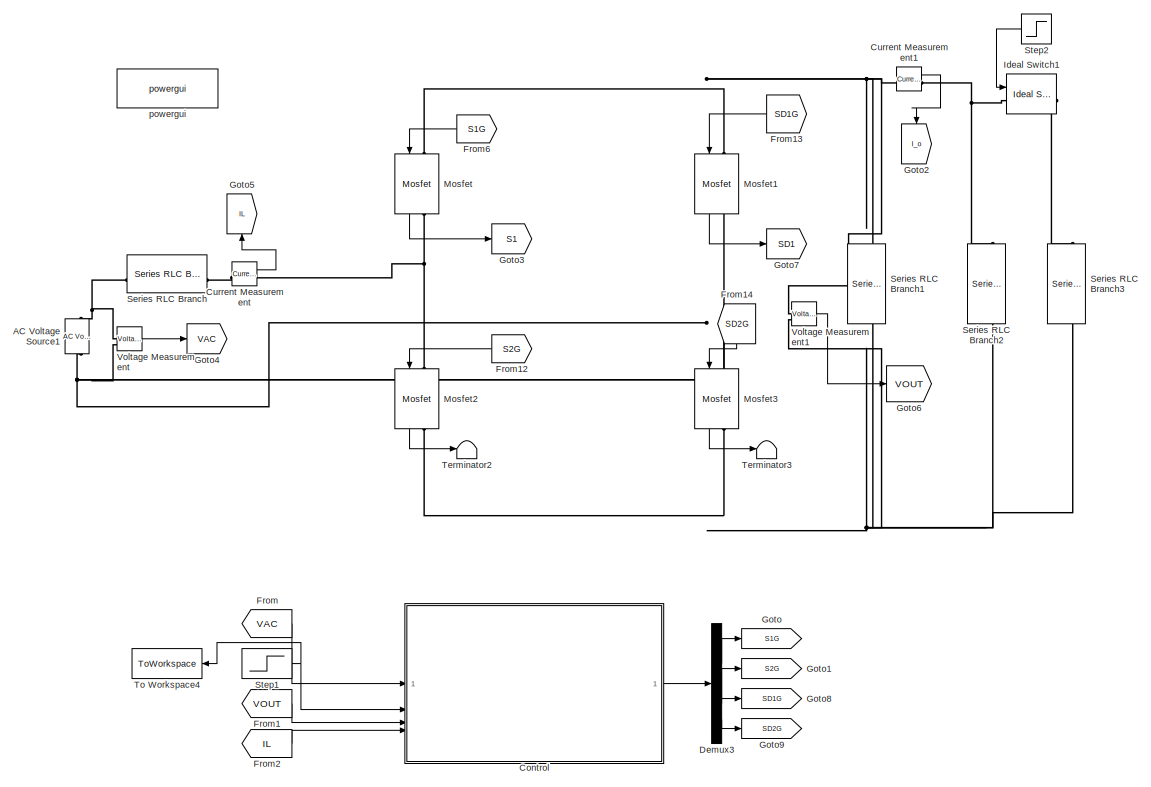
[diagram: root canvas - part 1/2, center side, full height]
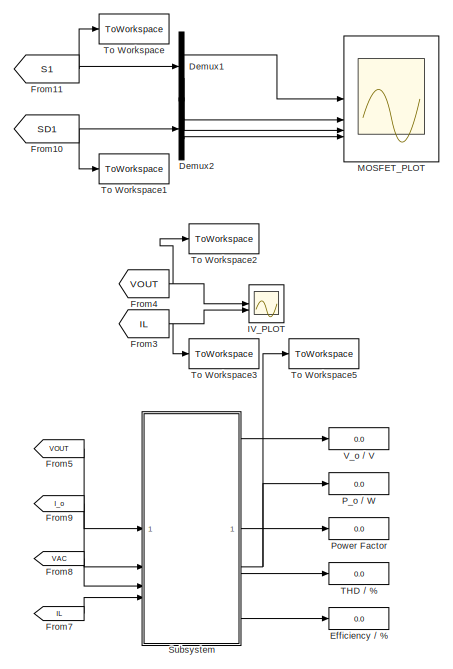
[diagram: root canvas - part 2/2, right side, full height]
MODEL slx_56755ae4c4dd
KIND model
CONFIG AbsTol = 1e-3
CONFIG EnableMultiTasking = on
CONFIG FixedStep = Ts_Power
CONFIG MaxStep = auto
CONFIG MinStep = auto
CONFIG RelTol = 1e-3
CONFIG SampleTimeConstraint = Unconstrained
CONFIG SolverName = FixedStepDiscrete
CONFIG StartTime = 0.0
CONFIG StopTime = 0.6
BLOCK [Reference] AC Voltage Source1  REF=spsACVoltageSourceLib/AC Voltage Source
  LibrarySourceBlock = sps_lib/Sources/AC Voltage Source
  SourceBlock = spsACVoltageSourceLib/AC Voltage Source
  SourceType = AC Voltage Source
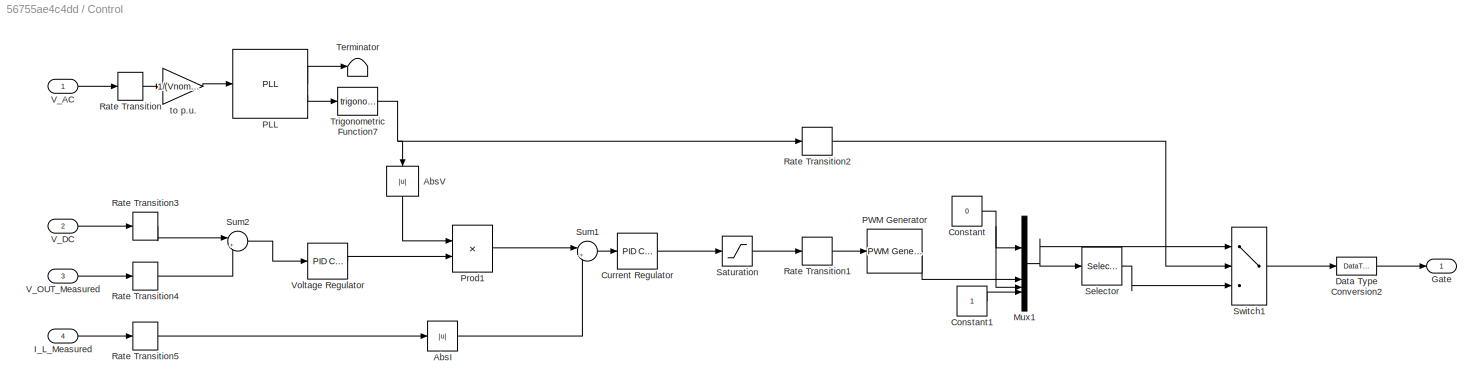
BLOCK [SubSystem] Control
BLOCK [Abs] Control/AbsI
  SaturateOnIntegerOverflow = off
BLOCK [Abs] Control/AbsV
  NameLocation = right
  SaturateOnIntegerOverflow = off
BLOCK [Constant] Control/Constant
  Value = 0
BLOCK [Constant] Control/Constant1
BLOCK [Reference] Control/Current Regulator  REF=slpidlib/PID Controller
  LibrarySourceBlock = simulink/Continuous/PID Controller
  SourceBlock = slpidlib/PID Controller
  SourceType = PID 1dof
BLOCK [DataTypeConversion] Control/Data Type Conversion2
  OutDataTypeStr = double
  RndMeth = Floor
  SaturateOnIntegerOverflow = off
BLOCK [Outport] Control/Gate
BLOCK [Inport] Control/I_L_Measured
  Port = 4
BLOCK [Mux] Control/Mux1
  DisplayOption = bar
BLOCK [Reference] Control/PLL  REF=spsPLLLib/PLL
  SourceBlock = spsPLLLib/PLL
  SourceType = PLL
BLOCK [Reference] Control/PWM Generator  REF=spsPWMGeneratorDCDCLib/PWM Generator
(DC-DC)
  SourceBlock = spsPWMGeneratorDCDCLib/PWM Generator\n(DC-DC)
  SourceType = PWM Generator (DC-DC)
BLOCK [Product] Control/Prod1
BLOCK [RateTransition] Control/Rate Transition
  OutPortSampleTime = Ts_Control
BLOCK [RateTransition] Control/Rate Transition1
  OutPortSampleTime = Ts_Power
BLOCK [RateTransition] Control/Rate Transition2
  OutPortSampleTime = Ts_Power
BLOCK [RateTransition] Control/Rate Transition3
  OutPortSampleTime = Ts_Control
BLOCK [RateTransition] Control/Rate Transition4
  OutPortSampleTime = Ts_Control
BLOCK [RateTransition] Control/Rate Transition5
  OutPortSampleTime = Ts_Control
BLOCK [Saturate] Control/Saturation
  LowerLimit = 0
  UpperLimit = 1
BLOCK [Selector] Control/Selector
  IndexOptions = Index vector (dialog)
  Indices = [2 1 4 3]
  InputPortWidth = 4
  OutputSizes = 1
BLOCK [Sum] Control/Sum1
  Inputs = |+-
BLOCK [Sum] Control/Sum2
  Inputs = |+-
BLOCK [Switch] Control/Switch1
  InputSameDT = off
  SaturateOnIntegerOverflow = off
BLOCK [Terminator] Control/Terminator
BLOCK [Trigonometry] Control/Trigonometric Function7
  NameLocation = top
BLOCK [Inport] Control/V_AC
BLOCK [Inport] Control/V_DC
  Port = 2
BLOCK [Inport] Control/V_OUT_Measured
  Port = 3
BLOCK [Reference] Control/Voltage Regulator  REF=slpidlib/PID Controller
  LibrarySourceBlock = simulink/Continuous/PID Controller
  SourceBlock = slpidlib/PID Controller
  SourceType = PID 1dof
BLOCK [Gain] Control/to p.u.
  Gain = 1/(Vnom_ac*sqrt(2))
BLOCK [Reference] Current Measurement  REF=spsCurrentMeasurementLib/Current Measurement
  LibrarySourceBlock = sps_lib/Sensors and Measurements/Current Measurement
  SourceBlock = spsCurrentMeasurementLib/Current Measurement
  SourceType = Current Measurement
  UserDataPersistent = on
BLOCK [Reference] Current Measurement1  REF=spsCurrentMeasurementLib/Current Measurement
  LibrarySourceBlock = sps_lib/Sensors and Measurements/Current Measurement
  SourceBlock = spsCurrentMeasurementLib/Current Measurement
  SourceType = Current Measurement
  UserDataPersistent = on
BLOCK [Demux] Demux1
  Outputs = 2
BLOCK [Demux] Demux2
  Outputs = 2
BLOCK [Demux] Demux3
BLOCK [Display] Efficiency // %
  Decimation = 100
BLOCK [From] From
  GotoTag = VAC
BLOCK [From] From1
  GotoTag = VOUT
BLOCK [From] From10
  GotoTag = SD1
BLOCK [From] From11
  GotoTag = S1
BLOCK [From] From12
  GotoTag = S2G
  NameLocation = top
BLOCK [From] From13
  GotoTag = SD1G
  NameLocation = top
BLOCK [From] From14
  GotoTag = SD2G
  NameLocation = left
BLOCK [From] From2
  GotoTag = IL
BLOCK [From] From3
  GotoTag = IL
BLOCK [From] From4
  GotoTag = VOUT
BLOCK [From] From5
  GotoTag = VOUT
BLOCK [From] From6
  GotoTag = S1G
  NameLocation = top
BLOCK [From] From7
  GotoTag = IL
BLOCK [From] From8
  GotoTag = VAC
BLOCK [From] From9
  GotoTag = I_o
BLOCK [Goto] Goto
  GotoTag = S1G
BLOCK [Goto] Goto1
  GotoTag = S2G
BLOCK [Goto] Goto2
  GotoTag = I_o
  NameLocation = left
BLOCK [Goto] Goto3
  GotoTag = S1
BLOCK [Goto] Goto4
  GotoTag = VAC
BLOCK [Goto] Goto5
  GotoTag = IL
  NameLocation = right
BLOCK [Goto] Goto6
  GotoTag = VOUT
BLOCK [Goto] Goto7
  GotoTag = SD1
BLOCK [Goto] Goto8
  GotoTag = SD1G
BLOCK [Goto] Goto9
  GotoTag = SD2G
BLOCK [Scope] IV_PLOT
  Floating = off
  NumInputPorts = 2
  ScopeSpecificationString = Simulink.scopes.TimeScopeBlockCfg('CurrentConfiguration', extmgr.ConfigurationSet(extmgr.Configuration('Core','General UI',true),extmgr.Configuration('Core','Source UI',true),extmgr.Configuration('Sources','WiredSimulink',true),extmgr.Configuration('Visuals','Time Domain',true,'SerializedDisplays',{struct('MinYLimReal','286.83799','MaxYLimReal','528.90297','YLabelReal','','MinYLimMag','286.83799',...<+2320ch>
BLOCK [Reference] Ideal Switch1  REF=spsIdealSwitchLib/Ideal Switch
  SourceBlock = spsIdealSwitchLib/Ideal Switch
  SourceType = Ideal Switch
BLOCK [Scope] MOSFET_PLOT
  Floating = off
  NumInputPorts = 4
  ScopeSpecificationString = Simulink.scopes.TimeScopeBlockCfg('CurrentConfiguration', extmgr.ConfigurationSet(extmgr.Configuration('Core','General UI',true),extmgr.Configuration('Core','Source UI',true),extmgr.Configuration('Sources','WiredSimulink',true,'DataLoggingVariableName','ScopeData1'),extmgr.Configuration('Visuals','Time Domain',true,'SerializedDisplays',{struct('MinYLimReal','-77.91195','MaxYLimReal','69.47466','YL...<+3833ch>
BLOCK [Reference] Mosfet  REF=spsMosfetLib/Mosfet
  LibrarySourceBlock = sps_lib/Power Electronics/Mosfet
  NameLocation = left
  SourceBlock = spsMosfetLib/Mosfet
  SourceType = Mosfet
BLOCK [Reference] Mosfet1  REF=spsMosfetLib/Mosfet
  LibrarySourceBlock = sps_lib/Power Electronics/Mosfet
  NameLocation = left
  SourceBlock = spsMosfetLib/Mosfet
  SourceType = Mosfet
BLOCK [Reference] Mosfet2  REF=spsMosfetLib/Mosfet
  LibrarySourceBlock = sps_lib/Power Electronics/Mosfet
  NameLocation = left
  SourceBlock = spsMosfetLib/Mosfet
  SourceType = Mosfet
BLOCK [Reference] Mosfet3  REF=spsMosfetLib/Mosfet
  LibrarySourceBlock = sps_lib/Power Electronics/Mosfet
  NameLocation = left
  SourceBlock = spsMosfetLib/Mosfet
  SourceType = Mosfet
BLOCK [Display] P_o // W
  Decimation = 1
BLOCK [Display] Power Factor
  Decimation = 1
BLOCK [Reference] Series RLC Branch  REF=spsSeriesRLCBranchLib/Series RLC Branch
  LibrarySourceBlock = sps_lib/Passives/Series RLC Branch
  SourceBlock = spsSeriesRLCBranchLib/Series RLC Branch
  SourceType = Series RLC Branch
BLOCK [Reference] Series RLC Branch1  REF=spsSeriesRLCBranchLib/Series RLC Branch
  LibrarySourceBlock = sps_lib/Passives/Series RLC Branch
  NameLocation = left
  SourceBlock = spsSeriesRLCBranchLib/Series RLC Branch
  SourceType = Series RLC Branch
BLOCK [Reference] Series RLC Branch2  REF=spsSeriesRLCBranchLib/Series RLC Branch
  LibrarySourceBlock = sps_lib/Passives/Series RLC Branch
  NameLocation = left
  SourceBlock = spsSeriesRLCBranchLib/Series RLC Branch
  SourceType = Series RLC Branch
BLOCK [Reference] Series RLC Branch3  REF=spsSeriesRLCBranchLib/Series RLC Branch
  LibrarySourceBlock = sps_lib/Passives/Series RLC Branch
  NameLocation = left
  SourceBlock = spsSeriesRLCBranchLib/Series RLC Branch
  SourceType = Series RLC Branch
BLOCK [Step] Step1
  After = Vnom_dc
  Before = 350
  NameLocation = top
  SampleTime = Ts_Power
  Time = 0.2
BLOCK [Step] Step2
  SampleTime = Ts_Power
  Time = 0.4
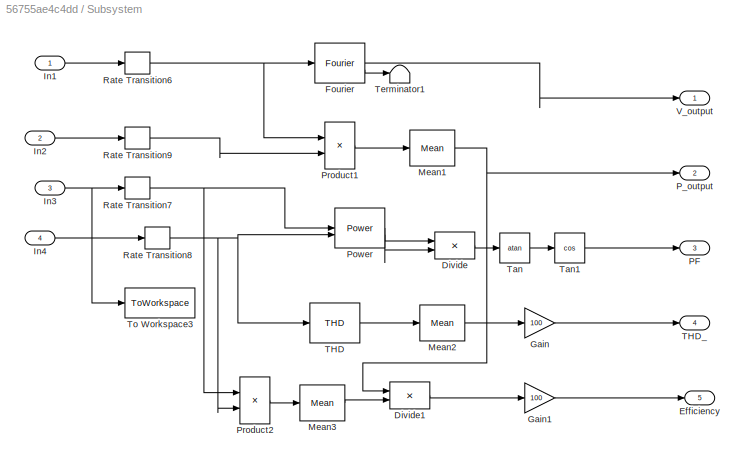
BLOCK [SubSystem] Subsystem
BLOCK [Product] Subsystem/Divide
  Inputs = */
BLOCK [Product] Subsystem/Divide1
  Inputs = */
BLOCK [Outport] Subsystem/Efficiency
  Port = 5
BLOCK [Reference] Subsystem/Fourier  REF=spsFourierLib/Fourier
  SourceBlock = spsFourierLib/Fourier
  SourceType = Fourier
BLOCK [Gain] Subsystem/Gain
  Gain = 100
BLOCK [Gain] Subsystem/Gain1
  Gain = 100
BLOCK [Inport] Subsystem/In1
BLOCK [Inport] Subsystem/In2
  Port = 2
BLOCK [Inport] Subsystem/In3
  Port = 3
BLOCK [Inport] Subsystem/In4
  Port = 4
BLOCK [Reference] Subsystem/Mean1  REF=spsMeanLib/Mean
  SourceBlock = spsMeanLib/Mean
  SourceType = Mean
BLOCK [Reference] Subsystem/Mean2  REF=spsMeanLib/Mean
  SourceBlock = spsMeanLib/Mean
  SourceType = Mean
BLOCK [Reference] Subsystem/Mean3  REF=spsMeanLib/Mean
  SourceBlock = spsMeanLib/Mean
  SourceType = Mean
BLOCK [Outport] Subsystem/PF
  Port = 3
BLOCK [Outport] Subsystem/P_output
  Port = 2
BLOCK [Reference] Subsystem/Power  REF=spsPowerLib/Power
  LibrarySourceBlock = sps_lib/Sensors and Measurements/Power
  SourceBlock = spsPowerLib/Power
  SourceType = Power
BLOCK [Product] Subsystem/Product1
BLOCK [Product] Subsystem/Product2
BLOCK [RateTransition] Subsystem/Rate Transition6
  OutPortSampleTime = Ts_Control
BLOCK [RateTransition] Subsystem/Rate Transition7
  OutPortSampleTime = Ts_Control
BLOCK [RateTransition] Subsystem/Rate Transition8
  OutPortSampleTime = Ts_Control
BLOCK [RateTransition] Subsystem/Rate Transition9
  OutPortSampleTime = Ts_Control
BLOCK [Reference] Subsystem/THD  REF=spsTHDLib/THD
  LibrarySourceBlock = sps_lib/Sensors and Measurements/THD
  SourceBlock = spsTHDLib/THD
  SourceType = THD
BLOCK [Outport] Subsystem/THD_
  Port = 4
BLOCK [Trigonometry] Subsystem/Tan
  Operator = atan
BLOCK [Trigonometry] Subsystem/Tan1
  Operator = cos
BLOCK [Terminator] Subsystem/Terminator1
BLOCK [ToWorkspace] Subsystem/To Workspace3
  FixptAsFi = on
  MaxDataPoints = inf
  SampleTime = Ts_Control
  SaveFormat = Structure With Time
  VariableName = VAC
BLOCK [Outport] Subsystem/V_output
BLOCK [Display] THD // %
  Decimation = 1
BLOCK [Terminator] Terminator2
BLOCK [Terminator] Terminator3
BLOCK [ToWorkspace] To Workspace
  FixptAsFi = on
  MaxDataPoints = inf
  SampleTime = Ts_Control
  SaveFormat = Structure With Time
  VariableName = S1
BLOCK [ToWorkspace] To Workspace1
  FixptAsFi = on
  MaxDataPoints = inf
  SampleTime = Ts_Control
  SaveFormat = Structure With Time
  VariableName = SD1
BLOCK [ToWorkspace] To Workspace2
  FixptAsFi = on
  MaxDataPoints = inf
  SampleTime = Ts_Control
  SaveFormat = Structure With Time
  VariableName = VOUT
BLOCK [ToWorkspace] To Workspace3
  FixptAsFi = on
  MaxDataPoints = inf
  SampleTime = Ts_Control
  SaveFormat = Structure With Time
  VariableName = IL
BLOCK [ToWorkspace] To Workspace4
  FixptAsFi = on
  MaxDataPoints = inf
  NameLocation = top
  SampleTime = Ts_Control
  SaveFormat = Structure With Time
  VariableName = Vref
BLOCK [ToWorkspace] To Workspace5
  FixptAsFi = on
  MaxDataPoints = inf
  SampleTime = Ts_Control
  SaveFormat = Structure With Time
  VariableName = P_o
BLOCK [Display] V_o // V
  Decimation = 1
BLOCK [Reference] Voltage Measurement  REF=spsVoltageMeasurementLib/Voltage Measurement
  LibrarySourceBlock = sps_lib/Sensors and Measurements/Voltage Measurement
  SourceBlock = spsVoltageMeasurementLib/Voltage Measurement
  SourceType = Voltage Measurement
  UserDataPersistent = on
BLOCK [Reference] Voltage Measurement1  REF=spsVoltageMeasurementLib/Voltage Measurement
  SourceBlock = spsVoltageMeasurementLib/Voltage Measurement
  SourceType = Voltage Measurement
  UserDataPersistent = on
BLOCK [Reference] powergui  REF=spspowerguiLib/powergui
  Priority = 1
  SourceBlock = spspowerguiLib/powergui
  SourceType = PSB option menu block
LINE Control/AbsI:1 -> Control/Sum1:2
LINE Control/AbsV:1 -> Control/Prod1:1
LINE Control/Constant1:1 -> Control/Mux1:4
NET Control/Constant:1 -> Control/Mux1:1, Control/Mux1:3
LINE Control/Current Regulator:1 -> Control/Saturation:1
LINE Control/Data Type Conversion2:1 -> Control/Gate:1
LINE Control/I_L_Measured:1 -> Control/Rate Transition5:1
NET Control/Mux1:1 -> Control/Selector:1, Control/Switch1:1
LINE Control/PLL:1 -> Control/Terminator:1
LINE Control/PLL:2 -> Control/Trigonometric Function7:1
LINE Control/PWM Generator:1 -> Control/Mux1:2
LINE Control/Prod1:1 -> Control/Sum1:1
LINE Control/Rate Transition1:1 -> Control/PWM Generator:1
LINE Control/Rate Transition2:1 -> Control/Switch1:2
LINE Control/Rate Transition3:1 -> Control/Sum2:1
LINE Control/Rate Transition4:1 -> Control/Sum2:2
LINE Control/Rate Transition5:1 -> Control/AbsI:1
LINE Control/Rate Transition:1 -> Control/to p.u.:1
LINE Control/Saturation:1 -> Control/Rate Transition1:1
LINE Control/Selector:1 -> Control/Switch1:3
LINE Control/Sum1:1 -> Control/Current Regulator:1
LINE Control/Sum2:1 -> Control/Voltage Regulator:1
LINE Control/Switch1:1 -> Control/Data Type Conversion2:1
NET Control/Trigonometric Function7:1 -> Control/AbsV:1, Control/Rate Transition2:1
LINE Control/V_AC:1 -> Control/Rate Transition:1
LINE Control/V_DC:1 -> Control/Rate Transition3:1
LINE Control/V_OUT_Measured:1 -> Control/Rate Transition4:1
LINE Control/Voltage Regulator:1 -> Control/Prod1:2
LINE Control/to p.u.:1 -> Control/PLL:1
LINE Control:1 -> Demux3:1
LINE Current Measurement1:1 -> Goto2:1
LINE Current Measurement:1 -> Goto5:1
LINE Demux1:1 -> MOSFET_PLOT:1
LINE Demux1:2 -> MOSFET_PLOT:2
LINE Demux2:1 -> MOSFET_PLOT:3
LINE Demux2:2 -> MOSFET_PLOT:4
LINE Demux3:1 -> Goto:1
LINE Demux3:2 -> Goto1:1
LINE Demux3:3 -> Goto8:1
LINE Demux3:4 -> Goto9:1
NET From10:1 -> Demux2:1, To Workspace1:1
NET From11:1 -> Demux1:1, To Workspace:1
LINE From12:1 -> Mosfet2:1
LINE From13:1 -> Mosfet1:1
LINE From14:1 -> Mosfet3:1
LINE From1:1 -> Control:3
LINE From2:1 -> Control:4
NET From3:1 -> IV_PLOT:2, To Workspace3:1
NET From4:1 -> IV_PLOT:1, To Workspace2:1
LINE From5:1 -> Subsystem:1
LINE From6:1 -> Mosfet:1
LINE From7:1 -> Subsystem:4
LINE From8:1 -> Subsystem:3
LINE From9:1 -> Subsystem:2
LINE From:1 -> Control:1
LINE Mosfet1:1 -> Goto7:1
LINE Mosfet2:1 -> Terminator2:1
LINE Mosfet3:1 -> Terminator3:1
LINE Mosfet:1 -> Goto3:1
NET Step1:1 -> Control:2, To Workspace4:1
LINE Step2:1 -> Ideal Switch1:1
LINE Subsystem/Divide1:1 -> Subsystem/Gain1:1
LINE Subsystem/Divide:1 -> Subsystem/Tan:1
LINE Subsystem/Fourier:1 -> Subsystem/V_output:1
LINE Subsystem/Fourier:2 -> Subsystem/Terminator1:1
LINE Subsystem/Gain1:1 -> Subsystem/Efficiency:1
LINE Subsystem/Gain:1 -> Subsystem/THD_:1
LINE Subsystem/In1:1 -> Subsystem/Rate Transition6:1
LINE Subsystem/In2:1 -> Subsystem/Rate Transition9:1
NET Subsystem/In3:1 -> Subsystem/Rate Transition7:1, Subsystem/To Workspace3:1
LINE Subsystem/In4:1 -> Subsystem/Rate Transition8:1
NET Subsystem/Mean1:1 -> Subsystem/Divide1:1, Subsystem/P_output:1
LINE Subsystem/Mean2:1 -> Subsystem/Gain:1
LINE Subsystem/Mean3:1 -> Subsystem/Divide1:2
LINE Subsystem/Power:1 -> Subsystem/Divide:2
LINE Subsystem/Power:2 -> Subsystem/Divide:1
LINE Subsystem/Product1:1 -> Subsystem/Mean1:1
LINE Subsystem/Product2:1 -> Subsystem/Mean3:1
NET Subsystem/Rate Transition6:1 -> Subsystem/Fourier:1, Subsystem/Product1:1
NET Subsystem/Rate Transition7:1 -> Subsystem/Power:1, Subsystem/Product2:1
NET Subsystem/Rate Transition8:1 -> Subsystem/Power:2, Subsystem/Product2:2, Subsystem/THD:1
LINE Subsystem/Rate Transition9:1 -> Subsystem/Product1:2
LINE Subsystem/THD:1 -> Subsystem/Mean2:1
LINE Subsystem/Tan1:1 -> Subsystem/PF:1
LINE Subsystem/Tan:1 -> Subsystem/Tan1:1
LINE Subsystem:1 -> V_o // V:1
NET Subsystem:2 -> P_o // W:1, To Workspace5:1
LINE Subsystem:3 -> Power Factor:1
LINE Subsystem:4 -> THD // %:1
LINE Subsystem:5 -> Efficiency // %:1
LINE Voltage Measurement1:1 -> Goto6:1
LINE Voltage Measurement:1 -> Goto4:1
PNET net1: AC Voltage Source1:LConn1 -- Mosfet1:RConn1 -- Mosfet3:LConn1 -- Voltage Measurement:LConn2
PNET net2: AC Voltage Source1:RConn1 -- Series RLC Branch:LConn1 -- Voltage Measurement:LConn1
PNET net3: Current Measurement1:LConn1 -- Mosfet1:LConn1 -- Mosfet:LConn1 -- Series RLC Branch1:LConn1 -- Voltage Measurement1:LConn1
PNET net4: Current Measurement1:RConn1 -- Ideal Switch1:LConn1 -- Series RLC Branch2:LConn1
PLINE Current Measurement:LConn1 -- Series RLC Branch:RConn1
PNET net5: Current Measurement:RConn1 -- Mosfet2:LConn1 -- Mosfet:RConn1
PLINE Ideal Switch1:RConn1 -- Series RLC Branch3:LConn1
PNET net6: Mosfet2:RConn1 -- Mosfet3:RConn1 -- Series RLC Branch1:RConn1 -- Series RLC Branch2:RConn1 -- Series RLC Branch3:RConn1 -- Voltage Measurement1:LConn2
note: NET lines group one-source signal fan-out (src -> all destinations, sorted); 1:1 wires keep LINE; PNET lines group multi-terminal physical nets as a canonical sorted terminal list (undirected conserving connections); 2-terminal nets keep the pairwise PLINE form
